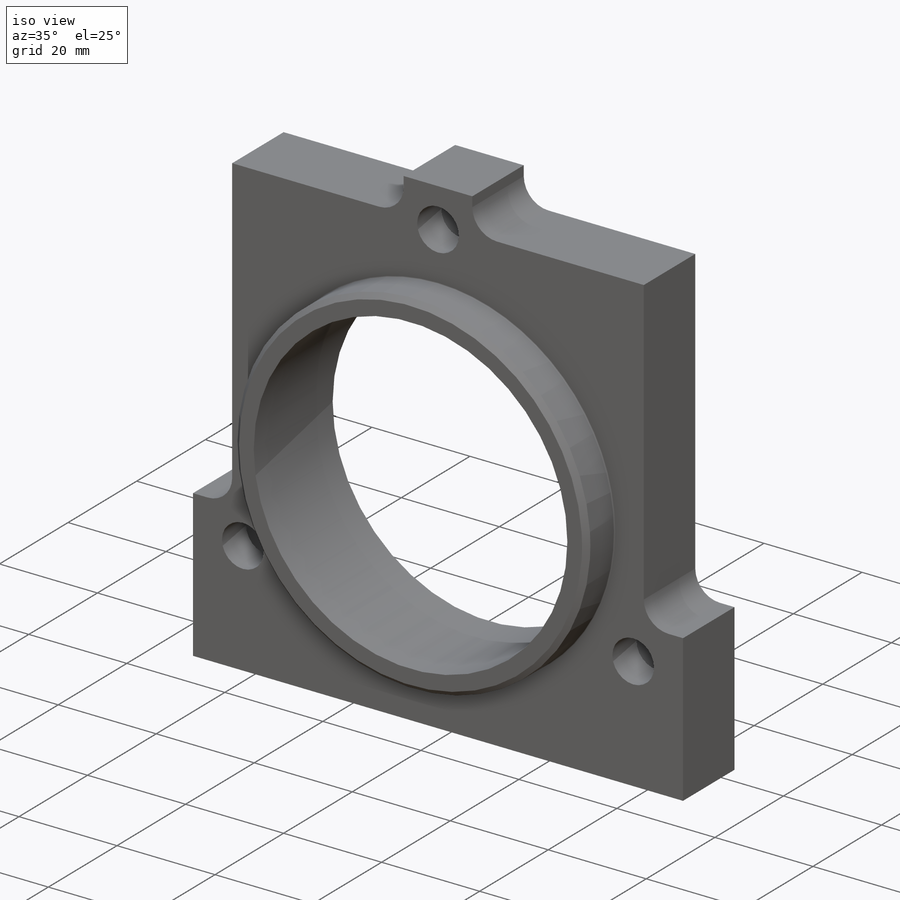
[diagram: iso view]
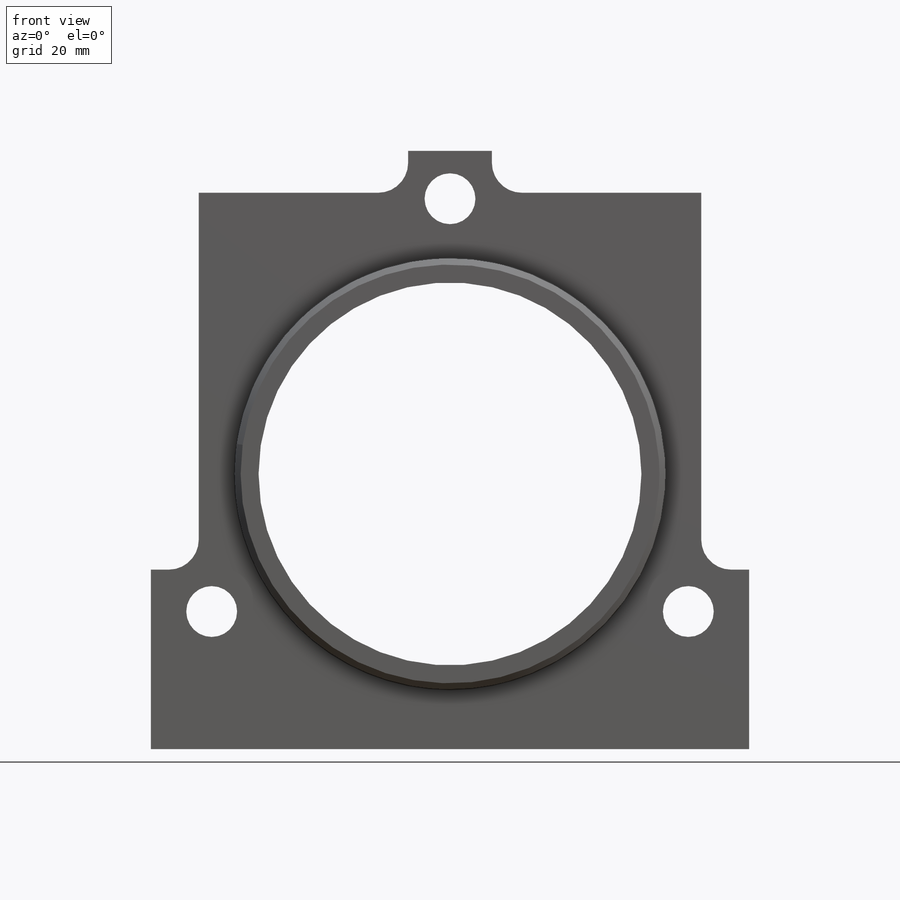
[diagram: front view]
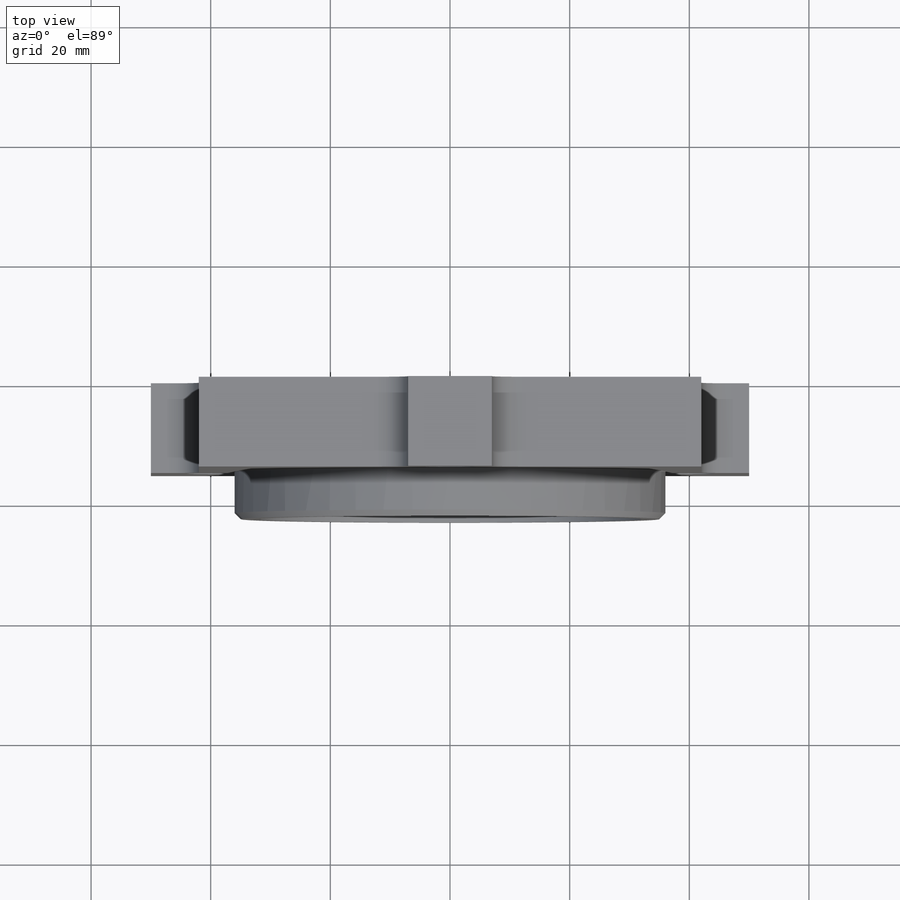
[diagram: top view]
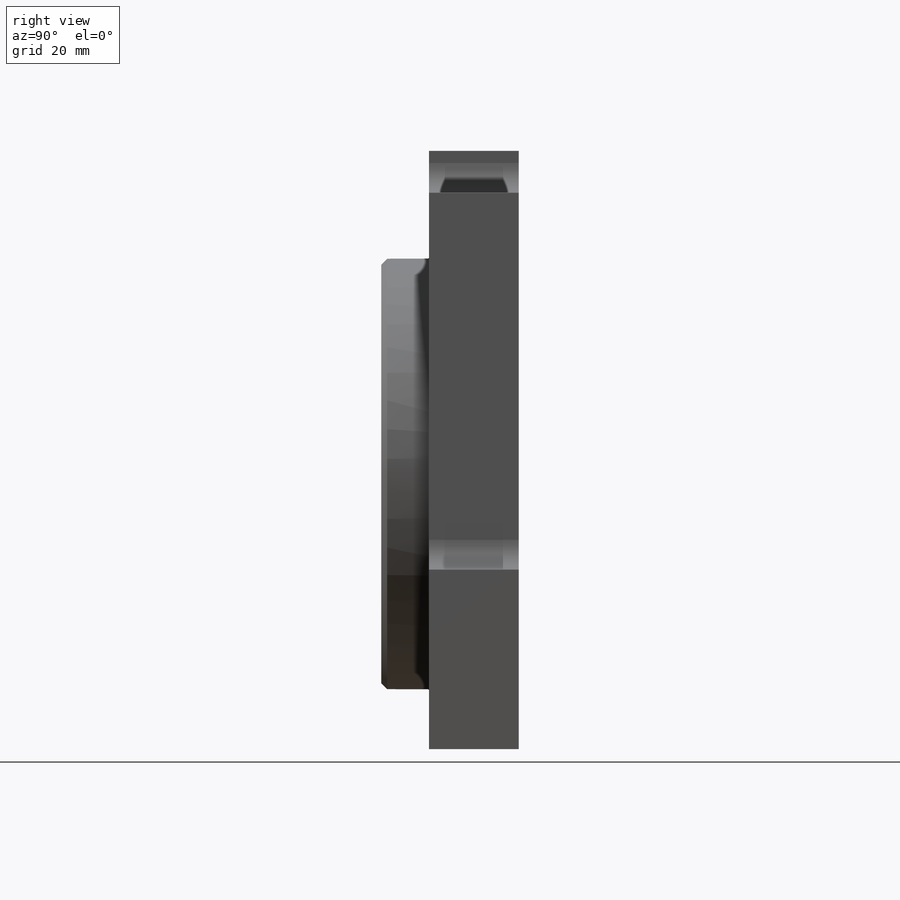
[diagram: right view]
SOLIDWORKS PART (.sldprt)
format: sldprt  version: not decoded by parser v0  size: 267,264 bytes
history: native  units: mm
features: sketch x4, plane x3, extrude x2, cut_extrude x2, material x1, chamfer x1, fillet x1, pattern_circular x1 (+8 scaffold rows collapsed)
feature tree (23):
  scaffold x8  (default folders/planes/origin — collapsed)
  material  "3.1325 (EN-AW 2017A)"
  plane  "Plan de face"
  plane  "Plan de dessus"
  plane  "Plan de droite"
  sketch  "Esquisse1"  dims[c1.D1=64.0mm c1.D12=5.0mm c1.D2=46.0mm c1.D3=100.0mm c1.D4=50.0mm c1.D5=54.0mm c1.D6=42.0mm c1.D7=42.0mm c1.D8=35.0mm c1.D9=35.0mm c1.D10=30.0mm c1.D11=63.0mm c2.D12=7.0mm]
  extrude  "Boss.-Extru.1"  Depth=15mm
  sketch  "Esquisse2"  dims[D1=72.0mm]
  extrude  "Boss.-Extru.2"  Depth=8mm
  chamfer  "Chanfrein1"  Distance=1mm Angle=45deg
  fillet  "Congé1"  Radius=0.2mm
  sketch  "Esquisse3"  dims[D1=92.0mm D2=8.5mm]
  cut_extrude  "Enlèv. mat.-Extru.1"  [1 undecoded]
  sketch  "Esquisse4"  dims[D1=14.0mm]
  cut_extrude  "Enlèv. mat.-Extru.2"  Depth=8mm
  pattern_circular  "Répétition circulaire1"  Count=3 Angle=360deg
decode coverage: 10 of 11 modeling features carry decoded parameters
note: 1 parameter value undecoded
note: suppression state not decoded; provenance and decode notes live in map.json
